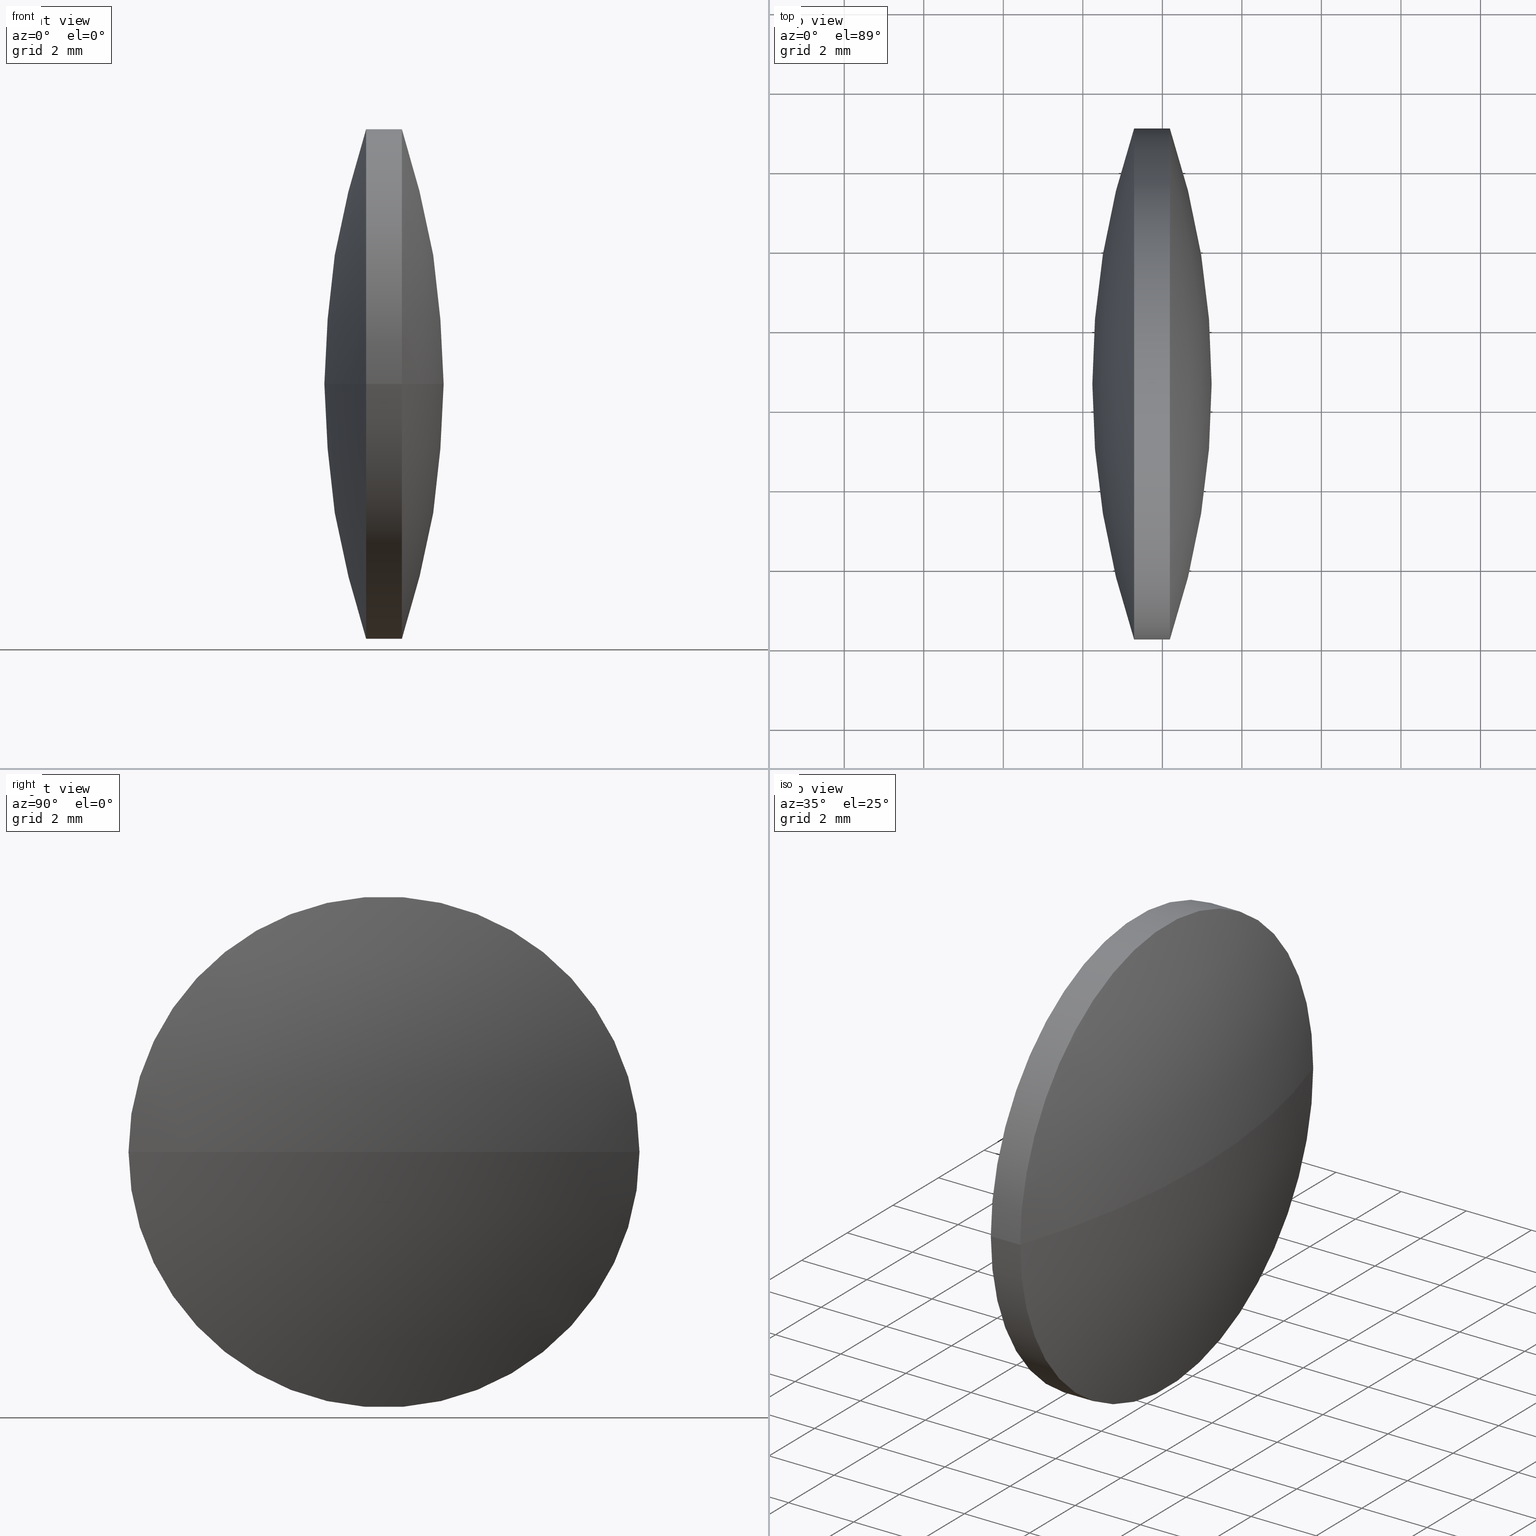
[diagram: canonical four-view strip — front | top / right | iso, engineering-drawing reading convention]
A machine part, canonical four-view strip (front | top / right | iso — engineering-drawing reading convention). The complete STEP part file that produces these views, byte-faithful:
ISO-10303-21;
HEADER;
FILE_DESCRIPTION (( 'STEP AP203' ),
    '1' );
FILE_NAME ('110014.STEP',
    '2019-06-25T05:38:33',
    ( '' ),
    ( '' ),
    'SwSTEP 2.0',
    'SolidWorks 2016',
    '' );
FILE_SCHEMA (( 'CONFIG_CONTROL_DESIGN' ));
ENDSEC;

DATA;
#1 = DIRECTION ( 'NONE',  ( 2.159965328289782600E-015, -1.000000000000000000, 0.0000000000000000000 ) ) ;
#2 = DIRECTION ( 'NONE',  ( -2.336600556030481800E-031, 1.224646799147353200E-016, -1.000000000000000000 ) ) ;
#3 = PERSON_AND_ORGANIZATION_ROLE ( 'creator' ) ;
#4 = CIRCLE ( 'NONE', #240, 6.425004895241819700 ) ;
#5 = CARTESIAN_POINT ( 'NONE',  ( 0.0000000000000000000, 0.0000000000000000000, 0.0000000000000000000 ) ) ;
#6 = EDGE_LOOP ( 'NONE', ( #202, #222, #225 ) ) ;
#7 = PERSON_AND_ORGANIZATION_ROLE ( 'creator' ) ;
#8 =( NAMED_UNIT ( * ) PLANE_ANGLE_UNIT ( ) SI_UNIT ( $, .RADIAN. ) );
#9 = EDGE_CURVE ( 'NONE', #67, #178, #162, .T. ) ;
#10 = DIRECTION ( 'NONE',  ( -1.000000000000000000, -1.907979147667159300E-015, -0.0000000000000000000 ) ) ;
#11 = FACE_OUTER_BOUND ( 'NONE', #21, .T. ) ;
#12 = UNCERTAINTY_MEASURE_WITH_UNIT (LENGTH_MEASURE( 1.000000000000000100E-005 ), #130, 'distance_accuracy_value', 'NONE');
#13 = APPROVAL ( #152, 'δָ��' ) ;
#14 = SECURITY_CLASSIFICATION_LEVEL ( 'unclassified' ) ;
#15 = DATE_AND_TIME ( #20, #115 ) ;
#16 = ORIENTED_EDGE ( 'NONE', *, *, #68, .T. ) ;
#17 = EDGE_CURVE ( 'NONE', #178, #132, #92, .T. ) ;
#18 = PRODUCT ( '110014', '110014', '', ( #244 ) ) ;
#19 = LOCAL_TIME ( 13, 38, 33.00000000000000000, #241 ) ;
#20 = CALENDAR_DATE ( 2019, 25, 6 ) ;
#21 = EDGE_LOOP ( 'NONE', ( #136, #76, #232, #43 ) ) ;
#22 = DIRECTION ( 'NONE',  ( 1.890945324480586900E-015, -1.000000000000000000, 0.0000000000000000000 ) ) ;
#23 = CALENDAR_DATE ( 2019, 25, 6 ) ;
#24 = AXIS2_PLACEMENT_3D ( 'NONE', #258, #96, #72 ) ;
#25 = DIRECTION ( 'NONE',  ( -2.062849444887929800E-015, 1.000000000000000000, 0.0000000000000000000 ) ) ;
#26 = DIRECTION ( 'NONE',  ( -1.000000000000000000, -1.907979147667159300E-015, -0.0000000000000000000 ) ) ;
#27 = DIRECTION ( 'NONE',  ( 1.000000000000000000, 0.0000000000000000000, 0.0000000000000000000 ) ) ;
#28 = PERSON_AND_ORGANIZATION ( #252, #91 ) ;
#29 = VERTEX_POINT ( 'NONE', #49 ) ;
#30 = CC_DESIGN_APPROVAL ( #160, ( #121 ) ) ;
#31 = EDGE_LOOP ( 'NONE', ( #143, #229, #64, #168 ) ) ;
#32 = APPLICATION_CONTEXT ( 'configuration controlled 3d designs of mechanical parts and assemblies' ) ;
#33 = EDGE_CURVE ( 'NONE', #37, #200, #206, .T. ) ;
#34 = CARTESIAN_POINT ( 'NONE',  ( 0.0000000000000000000, 0.0000000000000000000, 0.0000000000000000000 ) ) ;
#35 = CALENDAR_DATE ( 2019, 25, 6 ) ;
#36 = CYLINDRICAL_SURFACE ( 'NONE', #87, 6.425004895241819700 ) ;
#37 = VERTEX_POINT ( 'NONE', #120 ) ;
#38 = CC_DESIGN_PERSON_AND_ORGANIZATION_ASSIGNMENT ( #285, #129, ( #217 ) ) ;
#39 = AXIS2_PLACEMENT_3D ( 'NONE', #266, #2, #305 ) ;
#40 = CALENDAR_DATE ( 2019, 25, 6 ) ;
#41 = CC_DESIGN_APPROVAL ( #77, ( #217 ) ) ;
#42 = LOCAL_TIME ( 13, 38, 33.00000000000000000, #156 ) ;
#43 = ORIENTED_EDGE ( 'NONE', *, *, #246, .F. ) ;
#44 = CC_DESIGN_DATE_AND_TIME_ASSIGNMENT ( #142, #197, ( #271 ) ) ;
#45 = AXIS2_PLACEMENT_3D ( 'NONE', #236, #261, #208 ) ;
#46 = DATE_AND_TIME ( #158, #78 ) ;
#47 = PERSON_AND_ORGANIZATION ( #252, #91 ) ;
#48 = ORIENTED_EDGE ( 'NONE', *, *, #81, .F. ) ;
#49 = CARTESIAN_POINT ( 'NONE',  ( 42.23970917946287100, 24.59517828044028700, 0.0000000000000000000 ) ) ;
#50 = CC_DESIGN_SECURITY_CLASSIFICATION ( #121, ( #278 ) ) ;
#51 = EDGE_LOOP ( 'NONE', ( #48, #259, #138 ) ) ;
#52 = CARTESIAN_POINT ( 'NONE',  ( 41.05514945779384600, 24.59517828044031500, 0.0000000000000000000 ) ) ;
#53 = DIRECTION ( 'NONE',  ( -0.0000000000000000000, 0.0000000000000000000, 1.000000000000000000 ) ) ;
#54 = DATE_AND_TIME ( #35, #207 ) ;
#55 = DIRECTION ( 'NONE',  ( 0.0000000000000000000, 0.0000000000000000000, 1.000000000000000000 ) ) ;
#56 = CARTESIAN_POINT ( 'NONE',  ( 25.05725730939899500, 24.59517828044030500, 0.0000000000000000000 ) ) ;
#57 = APPLICATION_PROTOCOL_DEFINITION ( 'international standard', 'config_control_design', 1994, #199 ) ;
#58 = COORDINATED_UNIVERSAL_TIME_OFFSET ( 8, 0, .AHEAD. ) ;
#59 = EDGE_LOOP ( 'NONE', ( #254, #16, #116 ) ) ;
#60 = CC_DESIGN_PERSON_AND_ORGANIZATION_ASSIGNMENT ( #262, #193, ( #217 ) ) ;
#61 = PRODUCT_DEFINITION_SHAPE ( 'NONE', 'NONE',  #271 ) ;
#62 = CC_DESIGN_APPROVAL ( #302, ( #131 ) ) ;
#63 = PERSON_AND_ORGANIZATION ( #252, #91 ) ;
#64 = ORIENTED_EDGE ( 'NONE', *, *, #33, .F. ) ;
#65 = AXIS2_PLACEMENT_3D ( 'NONE', #166, #103, #124 ) ;
#66 = CC_DESIGN_DATE_AND_TIME_ASSIGNMENT ( #46, #106, ( #131 ) ) ;
#67 = VERTEX_POINT ( 'NONE', #185 ) ;
#68 = EDGE_CURVE ( 'NONE', #37, #29, #155, .T. ) ;
#69 = ADVANCED_FACE ( 'NONE', ( #105 ), #188, .T. ) ;
#70 = PERSON_AND_ORGANIZATION ( #252, #91 ) ;
#71 = LINE ( 'NONE', #110, #228 ) ;
#72 = DIRECTION ( 'NONE',  ( 0.0000000000000000000, -1.000000000000000000, -1.224646799147353200E-016 ) ) ;
#73 = CC_DESIGN_APPROVAL ( #13, ( #278 ) ) ;
#74 = DIRECTION ( 'NONE',  ( -1.000000000000000000, -1.907979147667159300E-015, -0.0000000000000000000 ) ) ;
#75 = CC_DESIGN_APPROVAL ( #300, ( #271 ) ) ;
#76 = ORIENTED_EDGE ( 'NONE', *, *, #17, .T. ) ;
#77 = APPROVAL ( #170, 'δָ��' ) ;
#78 = LOCAL_TIME ( 13, 38, 33.00000000000000000, #119 ) ;
#79 = PERSON_AND_ORGANIZATION_ROLE ( 'classification_officer' ) ;
#80 = MECHANICAL_CONTEXT ( 'NONE', #218, 'mechanical' ) ;
#81 = EDGE_CURVE ( 'NONE', #67, #132, #167, .T. ) ;
#82 = DIRECTION ( 'NONE',  ( 1.000000000000000000, 0.0000000000000000000, 0.0000000000000000000 ) ) ;
#83 = DIRECTION ( 'NONE',  ( -1.000000000000000000, -1.907979147667159300E-015, -0.0000000000000000000 ) ) ;
#84 = DATE_AND_TIME ( #201, #267 ) ;
#85 = APPLICATION_PROTOCOL_DEFINITION ( 'international standard', 'config_control_design', 1994, #32 ) ;
#86 = APPROVAL_STATUS ( 'not_yet_approved' ) ;
#87 = AXIS2_PLACEMENT_3D ( 'NONE', #52, #10, #195 ) ;
#88 = PERSON_AND_ORGANIZATION ( #252, #91 ) ;
#89 = PRODUCT ( '110014', '110014', '', ( #80 ) ) ;
#90 = COORDINATED_UNIVERSAL_TIME_OFFSET ( 8, 0, .AHEAD. ) ;
#91 = ORGANIZATION ( 'δָ��', 'δָ��', '' ) ;
#92 = CIRCLE ( 'NONE', #45, 6.425004895241819700 ) ;
#93 = CC_DESIGN_PERSON_AND_ORGANIZATION_ASSIGNMENT ( #47, #3, ( #271 ) ) ;
#94 = APPROVAL_DATE_TIME ( #147, #111 ) ;
#95 = CC_DESIGN_PERSON_AND_ORGANIZATION_ASSIGNMENT ( #63, #79, ( #131 ) ) ;
#96 = DIRECTION ( 'NONE',  ( 2.336600556030481800E-031, -1.224646799147353200E-016, 1.000000000000000000 ) ) ;
#97 = AXIS2_PLACEMENT_3D ( 'NONE', #287, #284, #169 ) ;
#98 = PERSON_AND_ORGANIZATION ( #252, #91 ) ;
#99 = FACE_OUTER_BOUND ( 'NONE', #117, .T. ) ;
#100 = CARTESIAN_POINT ( 'NONE',  ( 44.18971009732074900, 18.17017338519853100, 0.0000000000000000000 ) ) ;
#101 = CC_DESIGN_PERSON_AND_ORGANIZATION_ASSIGNMENT ( #28, #248, ( #121 ) ) ;
#102 = CARTESIAN_POINT ( 'NONE',  ( 25.05725730939899500, 24.59517828044030500, 0.0000000000000000000 ) ) ;
#103 = DIRECTION ( 'NONE',  ( -1.000000000000000000, -1.907979147667159300E-015, -0.0000000000000000000 ) ) ;
#104 = APPROVAL_PERSON_ORGANIZATION ( #88, #13, #175 ) ;
#105 = FACE_OUTER_BOUND ( 'NONE', #51, .T. ) ;
#106 = DATE_TIME_ROLE ( 'classification_date' ) ;
#107 = DIRECTION ( 'NONE',  ( -1.000000000000000000, -1.907979147667159300E-015, -0.0000000000000000000 ) ) ;
#108 = PERSON_AND_ORGANIZATION ( #252, #91 ) ;
#109 = DIRECTION ( 'NONE',  ( 0.0000000000000000000, 0.0000000000000000000, 1.000000000000000000 ) ) ;
#110 = CARTESIAN_POINT ( 'NONE',  ( 41.05514945779386000, 18.17017338519849500, 0.0000000000000000000 ) ) ;
#111 = APPROVAL ( #149, 'δָ��' ) ;
#112 = COORDINATED_UNIVERSAL_TIME_OFFSET ( 8, 0, .AHEAD. ) ;
#113 = CIRCLE ( 'NONE', #220, 6.425004895241823300 ) ;
#114 = PRODUCT_DEFINITION ( 'δ֪', '', #278, #224 ) ;
#115 = LOCAL_TIME ( 13, 38, 33.00000000000000000, #123 ) ;
#116 = ORIENTED_EDGE ( 'NONE', *, *, #161, .F. ) ;
#117 = EDGE_LOOP ( 'NONE', ( #214, #286, #268 ) ) ;
#118 = ADVANCED_FACE ( 'NONE', ( #263 ), #257, .T. ) ;
#119 = COORDINATED_UNIVERSAL_TIME_OFFSET ( 8, 0, .AHEAD. ) ;
#120 = CARTESIAN_POINT ( 'NONE',  ( 43.28971009732074300, 18.17017338519846000, -7.868361679463981300E-016 ) ) ;
#121 = SECURITY_CLASSIFICATION ( '', '', #14 ) ;
#122 = MANIFOLD_SOLID_BREP ( '��ת1', #250 ) ;
#123 = COORDINATED_UNIVERSAL_TIME_OFFSET ( 8, 0, .AHEAD. ) ;
#124 = DIRECTION ( 'NONE',  ( 2.159965328289781400E-015, -1.000000000000000000, 0.0000000000000000000 ) ) ;
#125 = CARTESIAN_POINT ( 'NONE',  ( 43.28971009732072900, 24.59517828044031900, 0.0000000000000000000 ) ) ;
#126 = CC_DESIGN_PERSON_AND_ORGANIZATION_ASSIGNMENT ( #108, #7, ( #114 ) ) ;
#127 = APPLICATION_PROTOCOL_DEFINITION ( 'international standard', 'config_control_design', 1994, #218 ) ;
#128 = CALENDAR_DATE ( 2019, 25, 6 ) ;
#129 = PERSON_AND_ORGANIZATION_ROLE ( 'design_supplier' ) ;
#130 =( LENGTH_UNIT ( ) NAMED_UNIT ( * ) SI_UNIT ( .MILLI., .METRE. ) );
#131 = SECURITY_CLASSIFICATION ( '', '', #216 ) ;
#132 = VERTEX_POINT ( 'NONE', #100 ) ;
#133 = CC_DESIGN_PERSON_AND_ORGANIZATION_ASSIGNMENT ( #177, #269, ( #18 ) ) ;
#134 = DATE_TIME_ROLE ( 'classification_date' ) ;
#135 = APPROVAL_DATE_TIME ( #249, #160 ) ;
#136 = ORIENTED_EDGE ( 'NONE', *, *, #255, .F. ) ;
#137 = PERSON_AND_ORGANIZATION ( #252, #91 ) ;
#138 = ORIENTED_EDGE ( 'NONE', *, *, #182, .F. ) ;
#139 = AXIS2_PLACEMENT_3D ( 'NONE', #102, #212, #22 ) ;
#140 = DIRECTION ( 'NONE',  ( 2.159965328289782600E-015, -1.000000000000000000, 0.0000000000000000000 ) ) ;
#141 = COORDINATED_UNIVERSAL_TIME_OFFSET ( 8, 0, .AHEAD. ) ;
#142 = DATE_AND_TIME ( #283, #293 ) ;
#143 = ORIENTED_EDGE ( 'NONE', *, *, #182, .T. ) ;
#144 = CC_DESIGN_APPROVAL ( #111, ( #114 ) ) ;
#145 = DIRECTION ( 'NONE',  ( -0.0000000000000000000, 0.0000000000000000000, -1.000000000000000000 ) ) ;
#146 = CARTESIAN_POINT ( 'NONE',  ( 62.42216288524226500, 24.59517828044032600, 0.0000000000000000000 ) ) ;
#147 = DATE_AND_TIME ( #227, #292 ) ;
#148 = APPROVAL_ROLE ( '' ) ;
#149 = APPROVAL_STATUS ( 'not_yet_approved' ) ;
#150 = DIRECTION ( 'NONE',  ( 1.890945324480586900E-015, -1.000000000000000000, 0.0000000000000000000 ) ) ;
#151 = CC_DESIGN_PERSON_AND_ORGANIZATION_ASSIGNMENT ( #70, #226, ( #278 ) ) ;
#152 = APPROVAL_STATUS ( 'not_yet_approved' ) ;
#153 = DATE_AND_TIME ( #211, #303 ) ;
#154 = APPROVAL_DATE_TIME ( #15, #300 ) ;
#155 = CIRCLE ( 'NONE', #39, 20.18245370577939500 ) ;
#156 = COORDINATED_UNIVERSAL_TIME_OFFSET ( 8, 0, .AHEAD. ) ;
#157 = AXIS2_PLACEMENT_3D ( 'NONE', #146, #145, #25 ) ;
#158 = CALENDAR_DATE ( 2019, 25, 6 ) ;
#159 = CIRCLE ( 'NONE', #179, 20.18245370577940200 ) ;
#160 = APPROVAL ( #86, 'δָ��' ) ;
#161 = EDGE_CURVE ( 'NONE', #200, #29, #159, .T. ) ;
#162 = CIRCLE ( 'NONE', #24, 20.18245370577956200 ) ;
#163 = ADVANCED_FACE ( 'NONE', ( #11 ), #296, .T. ) ;
#164 = APPROVAL_DATE_TIME ( #184, #77 ) ;
#165 = CC_DESIGN_SECURITY_CLASSIFICATION ( #131, ( #217 ) ) ;
#166 = CARTESIAN_POINT ( 'NONE',  ( 43.28971009732072900, 24.59517828044031900, 0.0000000000000000000 ) ) ;
#167 = CIRCLE ( 'NONE', #97, 20.18245370577956200 ) ;
#168 = ORIENTED_EDGE ( 'NONE', *, *, #275, .F. ) ;
#169 = DIRECTION ( 'NONE',  ( -1.000000000000000000, 0.0000000000000000000, 0.0000000000000000000 ) ) ;
#170 = APPROVAL_STATUS ( 'not_yet_approved' ) ;
#171 = APPROVAL_STATUS ( 'not_yet_approved' ) ;
#172 = LOCAL_TIME ( 13, 38, 33.00000000000000000, #231 ) ;
#173 = SPHERICAL_SURFACE ( 'NONE', #203, 20.18245370577956200 ) ;
#174 = DATE_TIME_ROLE ( 'creation_date' ) ;
#175 = APPROVAL_ROLE ( '' ) ;
#176 = DIRECTION ( 'NONE',  ( 1.000000000000000000, 0.0000000000000000000, 0.0000000000000000000 ) ) ;
#177 = PERSON_AND_ORGANIZATION ( #252, #91 ) ;
#178 = VERTEX_POINT ( 'NONE', #189 ) ;
#179 = AXIS2_PLACEMENT_3D ( 'NONE', #186, #187, #27 ) ;
#180 = APPROVAL_ROLE ( '' ) ;
#181 = APPROVAL_PERSON_ORGANIZATION ( #198, #77, #239 ) ;
#182 = EDGE_CURVE ( 'NONE', #132, #178, #4, .T. ) ;
#183 = APPROVAL_PERSON_ORGANIZATION ( #299, #300, #148 ) ;
#184 = DATE_AND_TIME ( #23, #172 ) ;
#185 = CARTESIAN_POINT ( 'NONE',  ( 45.23971101517855700, 24.59517828044034400, 0.0000000000000000000 ) ) ;
#186 = CARTESIAN_POINT ( 'NONE',  ( 62.42216288524226500, 24.59517828044032600, 0.0000000000000000000 ) ) ;
#187 = DIRECTION ( 'NONE',  ( -0.0000000000000000000, 0.0000000000000000000, 1.000000000000000000 ) ) ;
#188 = SPHERICAL_SURFACE ( 'NONE', #139, 20.18245370577956200 ) ;
#189 = CARTESIAN_POINT ( 'NONE',  ( 44.18971009732072000, 31.02018317568213500, 7.868361679463932900E-016 ) ) ;
#190 =( GEOMETRIC_REPRESENTATION_CONTEXT ( 3 ) GLOBAL_UNCERTAINTY_ASSIGNED_CONTEXT ( ( #12 ) ) GLOBAL_UNIT_ASSIGNED_CONTEXT ( ( #130, #8, #270 ) ) REPRESENTATION_CONTEXT ( 'NONE', 'WORKASPACE' ) );
#191 = DIRECTION ( 'NONE',  ( -0.0000000000000000000, 0.0000000000000000000, -1.000000000000000000 ) ) ;
#192 = DESIGN_CONTEXT ( 'detailed design', #289, 'design' ) ;
#193 = PERSON_AND_ORGANIZATION_ROLE ( 'creator' ) ;
#194 = APPROVAL_STATUS ( 'not_yet_approved' ) ;
#195 = DIRECTION ( 'NONE',  ( 2.159965328289782600E-015, -1.000000000000000000, 0.0000000000000000000 ) ) ;
#196 = CC_DESIGN_DATE_AND_TIME_ASSIGNMENT ( #84, #134, ( #121 ) ) ;
#197 = DATE_TIME_ROLE ( 'creation_date' ) ;
#198 = PERSON_AND_ORGANIZATION ( #252, #91 ) ;
#199 = APPLICATION_CONTEXT ( 'configuration controlled 3d designs of mechanical parts and assemblies' ) ;
#200 = VERTEX_POINT ( 'NONE', #235 ) ;
#201 = CALENDAR_DATE ( 2019, 25, 6 ) ;
#202 = ORIENTED_EDGE ( 'NONE', *, *, #68, .F. ) ;
#203 = AXIS2_PLACEMENT_3D ( 'NONE', #56, #53, #150 ) ;
#204 = PERSON_AND_ORGANIZATION ( #252, #91 ) ;
#205 = FACE_OUTER_BOUND ( 'NONE', #6, .T. ) ;
#206 = CIRCLE ( 'NONE', #65, 6.425004895241823300 ) ;
#207 = LOCAL_TIME ( 13, 38, 33.00000000000000000, #90 ) ;
#208 = DIRECTION ( 'NONE',  ( 2.159965328289782600E-015, -1.000000000000000000, 0.0000000000000000000 ) ) ;
#209 = AXIS2_PLACEMENT_3D ( 'NONE', #282, #74, #140 ) ;
#210 = CC_DESIGN_DATE_AND_TIME_ASSIGNMENT ( #281, #174, ( #114 ) ) ;
#211 = CALENDAR_DATE ( 2019, 25, 6 ) ;
#212 = DIRECTION ( 'NONE',  ( -0.0000000000000000000, 0.0000000000000000000, 1.000000000000000000 ) ) ;
#213 = FACE_OUTER_BOUND ( 'NONE', #31, .T. ) ;
#214 = ORIENTED_EDGE ( 'NONE', *, *, #9, .F. ) ;
#215 = DIRECTION ( 'NONE',  ( -2.062849444887929800E-015, 1.000000000000000000, 0.0000000000000000000 ) ) ;
#216 = SECURITY_CLASSIFICATION_LEVEL ( 'unclassified' ) ;
#217 = PRODUCT_DEFINITION_FORMATION_WITH_SPECIFIED_SOURCE ( '�κ�', '', #18, .NOT_KNOWN. ) ;
#218 = APPLICATION_CONTEXT ( 'configuration controlled 3d designs of mechanical parts and assemblies' ) ;
#219 = COORDINATED_UNIVERSAL_TIME_OFFSET ( 8, 0, .AHEAD. ) ;
#220 = AXIS2_PLACEMENT_3D ( 'NONE', #125, #107, #290 ) ;
#221 = VECTOR ( 'NONE', #83, 1000.000000000000000 ) ;
#222 = ORIENTED_EDGE ( 'NONE', *, *, #33, .T. ) ;
#223 = APPROVAL_ROLE ( '' ) ;
#224 = DESIGN_CONTEXT ( 'detailed design', #199, 'design' ) ;
#225 = ORIENTED_EDGE ( 'NONE', *, *, #161, .T. ) ;
#226 = PERSON_AND_ORGANIZATION_ROLE ( 'creator' ) ;
#227 = CALENDAR_DATE ( 2019, 25, 6 ) ;
#228 = VECTOR ( 'NONE', #294, 1000.000000000000000 ) ;
#229 = ORIENTED_EDGE ( 'NONE', *, *, #255, .T. ) ;
#230 = ADVANCED_FACE ( 'NONE', ( #205 ), #253, .T. ) ;
#231 = COORDINATED_UNIVERSAL_TIME_OFFSET ( 8, 0, .AHEAD. ) ;
#232 = ORIENTED_EDGE ( 'NONE', *, *, #275, .T. ) ;
#233 = AXIS2_PLACEMENT_3D ( 'NONE', #34, #55, #82 ) ;
#234 = ADVANCED_FACE ( 'NONE', ( #99 ), #173, .T. ) ;
#235 = CARTESIAN_POINT ( 'NONE',  ( 43.28971009732071500, 31.02018317568214900, 0.0000000000000000000 ) ) ;
#236 = CARTESIAN_POINT ( 'NONE',  ( 44.18971009732073400, 24.59517828044032200, 0.0000000000000000000 ) ) ;
#237 = PERSON_AND_ORGANIZATION ( #252, #91 ) ;
#238 = CARTESIAN_POINT ( 'NONE',  ( 62.42216288524226500, 24.59517828044032600, 0.0000000000000000000 ) ) ;
#239 = APPROVAL_ROLE ( '' ) ;
#240 = AXIS2_PLACEMENT_3D ( 'NONE', #264, #26, #1 ) ;
#241 = COORDINATED_UNIVERSAL_TIME_OFFSET ( 8, 0, .AHEAD. ) ;
#242 = LINE ( 'NONE', #273, #221 ) ;
#243 = PERSON_AND_ORGANIZATION_ROLE ( 'design_owner' ) ;
#244 = MECHANICAL_CONTEXT ( 'NONE', #32, 'mechanical' ) ;
#245 = APPLICATION_PROTOCOL_DEFINITION ( 'international standard', 'config_control_design', 1994, #289 ) ;
#246 = EDGE_CURVE ( 'NONE', #200, #37, #113, .T. ) ;
#247 = SHAPE_DEFINITION_REPRESENTATION ( #260, #274 ) ;
#248 = PERSON_AND_ORGANIZATION_ROLE ( 'classification_officer' ) ;
#249 = DATE_AND_TIME ( #40, #19 ) ;
#250 = CLOSED_SHELL ( 'NONE', ( #280, #69, #118, #230, #234, #163 ) ) ;
#251 = AXIS2_PLACEMENT_3D ( 'NONE', #5, #109, #176 ) ;
#252 = PERSON ( 'δָ��', 'δָ��', 'δָ��', ('δָ��'), ('δָ��'), ('δָ��') ) ;
#253 = SPHERICAL_SURFACE ( 'NONE', #265, 20.18245370577939500 ) ;
#254 = ORIENTED_EDGE ( 'NONE', *, *, #246, .T. ) ;
#255 = EDGE_CURVE ( 'NONE', #178, #200, #242, .T. ) ;
#256 = APPROVAL_PERSON_ORGANIZATION ( #137, #160, #180 ) ;
#257 = SPHERICAL_SURFACE ( 'NONE', #157, 20.18245370577939500 ) ;
#258 = CARTESIAN_POINT ( 'NONE',  ( 25.05725730939899500, 24.59517828044030500, 0.0000000000000000000 ) ) ;
#259 = ORIENTED_EDGE ( 'NONE', *, *, #9, .T. ) ;
#260 = PRODUCT_DEFINITION_SHAPE ( 'NONE', 'NONE',  #114 ) ;
#261 = DIRECTION ( 'NONE',  ( -1.000000000000000000, -1.907979147667159300E-015, -0.0000000000000000000 ) ) ;
#262 = PERSON_AND_ORGANIZATION ( #252, #91 ) ;
#263 = FACE_OUTER_BOUND ( 'NONE', #59, .T. ) ;
#264 = CARTESIAN_POINT ( 'NONE',  ( 44.18971009732073400, 24.59517828044032200, 0.0000000000000000000 ) ) ;
#265 = AXIS2_PLACEMENT_3D ( 'NONE', #238, #191, #215 ) ;
#266 = CARTESIAN_POINT ( 'NONE',  ( 62.42216288524226500, 24.59517828044032600, 0.0000000000000000000 ) ) ;
#267 = LOCAL_TIME ( 13, 38, 33.00000000000000000, #141 ) ;
#268 = ORIENTED_EDGE ( 'NONE', *, *, #17, .F. ) ;
#269 = PERSON_AND_ORGANIZATION_ROLE ( 'design_owner' ) ;
#270 =( NAMED_UNIT ( * ) SI_UNIT ( $, .STERADIAN. ) SOLID_ANGLE_UNIT ( ) );
#271 = PRODUCT_DEFINITION ( 'δ֪', '', #217, #192 ) ;
#272 = APPROVAL_DATE_TIME ( #153, #13 ) ;
#273 = CARTESIAN_POINT ( 'NONE',  ( 41.05514945779383100, 31.02018317568213500, 7.868361679463971400E-016 ) ) ;
#274 = ADVANCED_BREP_SHAPE_REPRESENTATION ( '110014', ( #122, #251 ), #190 ) ;
#275 = EDGE_CURVE ( 'NONE', #132, #37, #71, .T. ) ;
#276 = APPROVAL_PERSON_ORGANIZATION ( #298, #111, #291 ) ;
#277 = APPROVAL_PERSON_ORGANIZATION ( #98, #302, #223 ) ;
#278 = PRODUCT_DEFINITION_FORMATION_WITH_SPECIFIED_SOURCE ( '�κ�', '', #89, .NOT_KNOWN. ) ;
#279 = APPROVAL_DATE_TIME ( #54, #302 ) ;
#280 = ADVANCED_FACE ( 'NONE', ( #213 ), #36, .T. ) ;
#281 = DATE_AND_TIME ( #128, #42 ) ;
#282 = CARTESIAN_POINT ( 'NONE',  ( 41.05514945779384600, 24.59517828044031500, 0.0000000000000000000 ) ) ;
#283 = CALENDAR_DATE ( 2019, 25, 6 ) ;
#284 = DIRECTION ( 'NONE',  ( 0.0000000000000000000, 0.0000000000000000000, -1.000000000000000000 ) ) ;
#285 = PERSON_AND_ORGANIZATION ( #252, #91 ) ;
#286 = ORIENTED_EDGE ( 'NONE', *, *, #81, .T. ) ;
#287 = CARTESIAN_POINT ( 'NONE',  ( 25.05725730939899500, 24.59517828044030500, 0.0000000000000000000 ) ) ;
#288 = CC_DESIGN_PERSON_AND_ORGANIZATION_ASSIGNMENT ( #204, #297, ( #278 ) ) ;
#289 = APPLICATION_CONTEXT ( 'configuration controlled 3d designs of mechanical parts and assemblies' ) ;
#290 = DIRECTION ( 'NONE',  ( 2.159965328289781400E-015, -1.000000000000000000, 0.0000000000000000000 ) ) ;
#291 = APPROVAL_ROLE ( '' ) ;
#292 = LOCAL_TIME ( 13, 38, 33.00000000000000000, #112 ) ;
#293 = LOCAL_TIME ( 13, 38, 33.00000000000000000, #58 ) ;
#294 = DIRECTION ( 'NONE',  ( -1.000000000000000000, -1.907979147667159300E-015, -0.0000000000000000000 ) ) ;
#295 = CC_DESIGN_PERSON_AND_ORGANIZATION_ASSIGNMENT ( #237, #243, ( #89 ) ) ;
#296 = CYLINDRICAL_SURFACE ( 'NONE', #209, 6.425004895241819700 ) ;
#297 = PERSON_AND_ORGANIZATION_ROLE ( 'design_supplier' ) ;
#298 = PERSON_AND_ORGANIZATION ( #252, #91 ) ;
#299 = PERSON_AND_ORGANIZATION ( #252, #91 ) ;
#300 = APPROVAL ( #194, 'δָ��' ) ;
#301 = PRODUCT_RELATED_PRODUCT_CATEGORY ( 'detail', '', ( #89 ) ) ;
#302 = APPROVAL ( #171, 'δָ��' ) ;
#303 = LOCAL_TIME ( 13, 38, 33.00000000000000000, #219 ) ;
#304 = PRODUCT_RELATED_PRODUCT_CATEGORY ( 'detail', '', ( #18 ) ) ;
#305 = DIRECTION ( 'NONE',  ( 0.0000000000000000000, 1.000000000000000000, 1.224646799147353200E-016 ) ) ;
ENDSEC;
END-ISO-10303-21;
